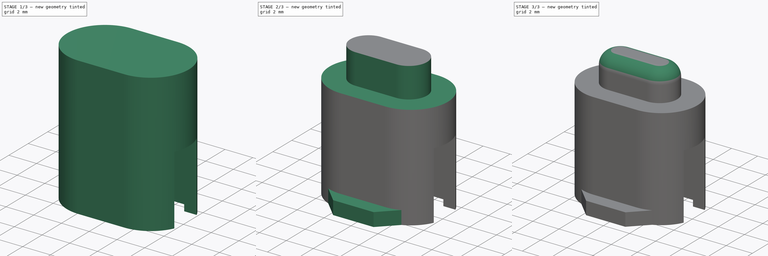
[diagram: build sequence overview — one tinted view per stage of 3, left to right]
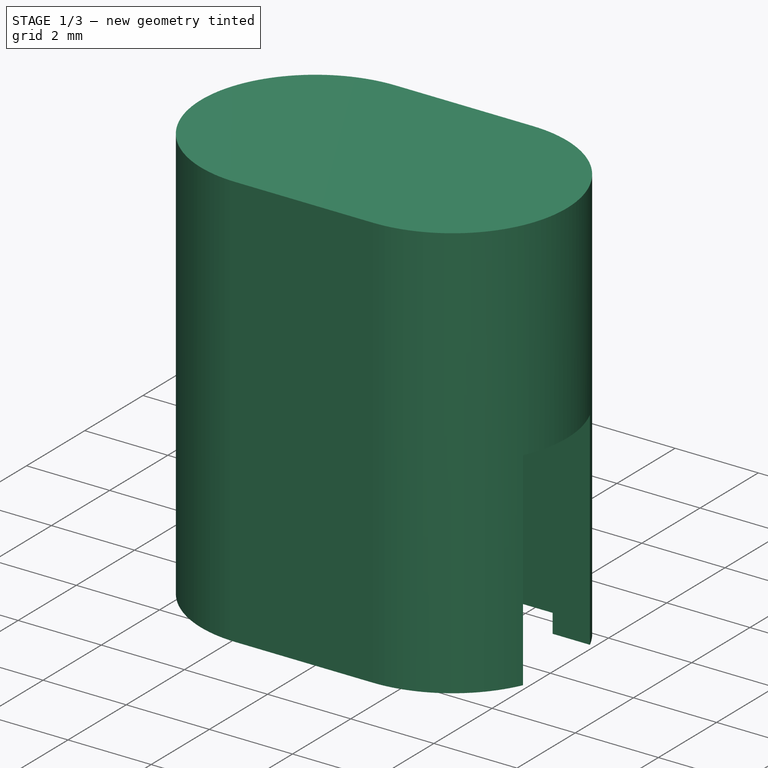
[diagram: stage 1 of 3 — iso view after this stage's code; geometry added in this stage tinted green]
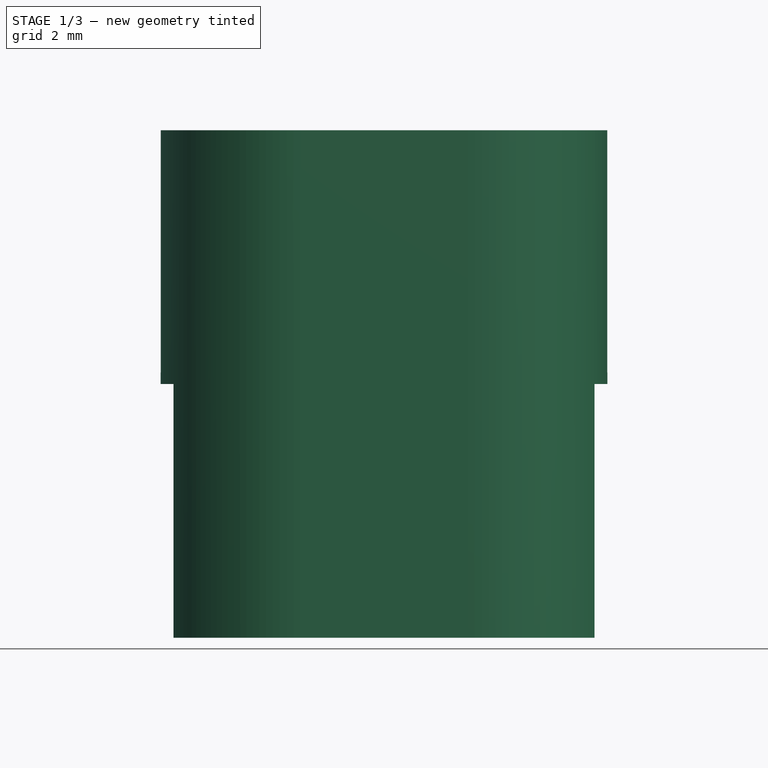
[diagram: stage 1 of 3 — front view after this stage's code; geometry added in this stage tinted green]
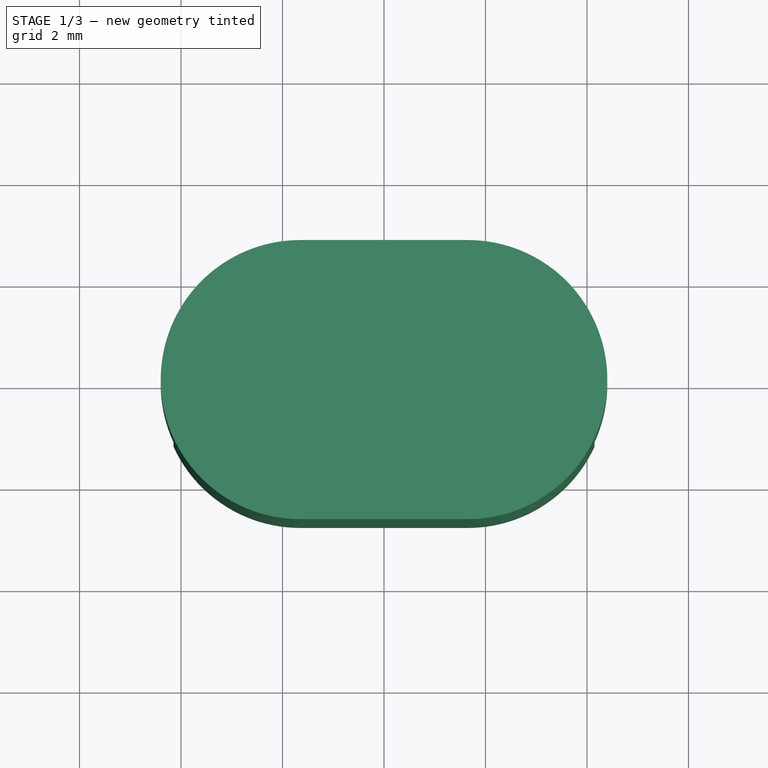
[diagram: stage 1 of 3 — top view after this stage's code; geometry added in this stage tinted green]
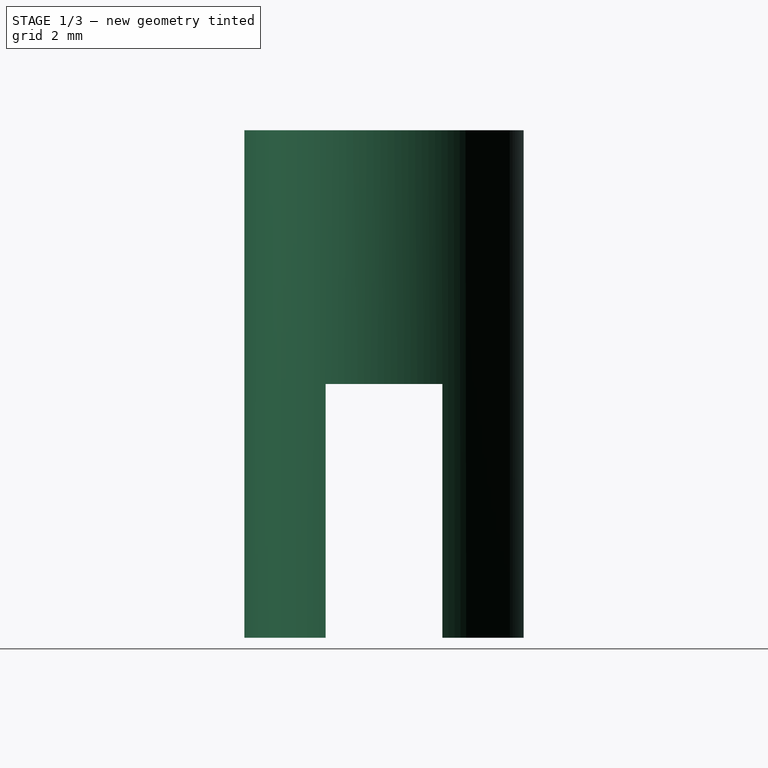
[diagram: stage 1 of 3 — right view after this stage's code; geometry added in this stage tinted green]
FCSTD DOCUMENT  (FreeCAD 1.0R39109 (Git))
Label: PLASTIC-VSN1-BUTTON - version1
License: All rights reserved
LicenseURL: https://en.wikipedia.org/wiki/All_rights_reserved
objects: Sketcher::SketchObject×5, PartDesign::Pad×3, PartDesign::Pocket×2, PartDesign::Plane×1, PartDesign::Mirrored×1, PartDesign::Fillet×1, PartDesign::Body×1
note: 32 computed .brp shape members not serialized (recipe doc carries the construction recipe); baked Part::Feature solids carry a one-line shape summary decoded from their .brp

FEATURE [Sketcher::SketchObject] Sketch
  ArcFitTolerance = 0
  AttachmentSupport = -> [XY_Plane]
  FullyConstrained = true
  MakeInternals = false
  MapMode = 5
  sketch-geometry (15):
    g0: LineSegment [constr] StartX=-3 StartY=-1.65 StartZ=0 EndX=-3 EndY=1.65 EndZ=0
    g1: LineSegment [constr] StartX=-3 StartY=1.65 StartZ=0 EndX=3 EndY=1.65 EndZ=0
    g2: LineSegment [constr] StartX=3 StartY=1.65 StartZ=0 EndX=3 EndY=-1.65 EndZ=0
    g3: LineSegment [constr] StartX=3 StartY=-1.65 StartZ=0 EndX=-3 EndY=-1.65 EndZ=0
    g4: GeomPoint [constr] X=0 Y=0 Z=0
    g5: GeomPoint [constr] X=0 Y=0 Z=0
    g6: LineSegment [constr] StartX=-3.25 StartY=-1.95 StartZ=0 EndX=-3.25 EndY=1.95 EndZ=0
    g7: LineSegment [constr] StartX=-3.25 StartY=1.95 StartZ=0 EndX=3.25 EndY=1.95 EndZ=0
    g8: LineSegment [constr] StartX=3.25 StartY=1.95 StartZ=0 EndX=3.25 EndY=-1.95 EndZ=0
    g9: LineSegment [constr] StartX=3.25 StartY=-1.95 StartZ=0 EndX=-3.25 EndY=-1.95 EndZ=0
    g10: GeomPoint [constr] X=0 Y=0 Z=0
    g11: ArcOfCircle CenterX=-1.65 CenterY=0 CenterZ=0 NormalX=0 NormalY=0 NormalZ=1 AngleXU=0 Radius=2.75 StartAngle=1.5708 EndAngle=4.71239
    g12: ArcOfCircle CenterX=1.65 CenterY=0 CenterZ=0 NormalX=0 NormalY=0 NormalZ=1 AngleXU=0 Radius=2.75 StartAngle=4.71239 EndAngle=7.85398
    g13: LineSegment StartX=-1.65 StartY=-2.75 StartZ=0 EndX=1.65 EndY=-2.75 EndZ=0
    g14: LineSegment StartX=1.65 StartY=2.75 StartZ=0 EndX=-1.65 EndY=2.75 EndZ=0
  constraints (34):
    c: Coincident(g0,g1)
    c: Coincident(g1,g2)
    c: Coincident(g2,g3)
    c: Coincident(g3,g0)
    c: Horizontal(g1)
    c: Horizontal(g3)
    c: Vertical(g0)
    c: Vertical(g2)
    c: Symmetric(g1,g0,g4)
    c: Coincident(g4,g-1)
    c: DistanceX(g1,g1) = 6
    c: DistanceY(g2,g2) = 3.3
    c: Coincident(g5,g4)
    c: Coincident(g6,g7)
    c: Coincident(g7,g8)
    c: Coincident(g8,g9)
    c: Coincident(g9,g6)
    c: Horizontal(g7)
    c: Horizontal(g9)
    c: Vertical(g6)
    c: Vertical(g8)
    c: Symmetric(g7,g6,g10)
    c: Coincident(g10,g4)
    c: DistanceX(g7,g7) = 6.5
    c: DistanceY(g8,g8) = 3.9
    c: Tangent(g11,g13) = -1.5708
    c: Tangent(g13,g12) = -1.5708
    c: Tangent(g12,g14) = -1.5708
    c: Tangent(g14,g11) = -1.5708
    c: Equal(g11,g12)
    c: PointOnObject(g11,g-1)
    c: Diameter(g12) = 5.5
    c: Symmetric(g12,g11,g4)
    c: DistanceX(g11,g12) = 3.3
FEATURE [PartDesign::Pad] Pad
  Direction = (0,0,1)
  Length = 10
  Length2 = 10
  Profile = -> Sketch
  ReferenceAxis = -> Sketch [N_Axis]
  Suppressed = false
  Type = 0
FEATURE [Sketcher::SketchObject] Sketch001
  ArcFitTolerance = 0
  AttachmentSupport = -> [XY_Plane]
  FullyConstrained = true
  MakeInternals = false
  MapMode = 5
  sketch-geometry (13):
    g0: LineSegment StartX=-3.25 StartY=1.95 StartZ=0 EndX=-3.25 EndY=1.15 EndZ=0
    g1: LineSegment StartX=-3.25 StartY=-1.95 StartZ=0 EndX=3.25 EndY=-1.95 EndZ=0
    g2: LineSegment StartX=3.25 StartY=-1.95 StartZ=0 EndX=3.25 EndY=-1.15 EndZ=0
    g3: LineSegment StartX=3.25 StartY=1.95 StartZ=0 EndX=-3.25 EndY=1.95 EndZ=0
    g4: GeomPoint [constr] X=0 Y=0 Z=0
    g5: LineSegment StartX=-3.25 StartY=1.15 StartZ=0 EndX=-5.25 EndY=1.15 EndZ=0
    g6: LineSegment StartX=-5.25 StartY=1.15 StartZ=0 EndX=-5.25 EndY=-1.15 EndZ=0
    g7: LineSegment StartX=-5.25 StartY=-1.15 StartZ=0 EndX=-3.25 EndY=-1.15 EndZ=0
    g8: LineSegment StartX=3.25 StartY=1.15 StartZ=0 EndX=5.25 EndY=1.15 EndZ=0
    g9: LineSegment StartX=5.25 StartY=1.15 StartZ=0 EndX=5.25 EndY=-1.15 EndZ=0
    g10: LineSegment StartX=5.25 StartY=-1.15 StartZ=0 EndX=3.25 EndY=-1.15 EndZ=0
    g11: LineSegment StartX=3.25 StartY=1.15 StartZ=0 EndX=3.25 EndY=1.95 EndZ=0
    g12: LineSegment StartX=-3.25 StartY=-1.15 StartZ=0 EndX=-3.25 EndY=-1.95 EndZ=0
  constraints (34):
    c: Coincident(g12,g1)
    c: Coincident(g1,g2)
    c: Coincident(g11,g3)
    c: Coincident(g3,g0)
    c: Horizontal(g1)
    c: Horizontal(g3)
    c: Vertical(g0)
    c: Vertical(g2)
    c: Symmetric(g1,g0,g4)
    c: Coincident(g4,g-1)
    c: DistanceX(g1,g1) = 6.5
    c: DistanceY(g12,g0) = 3.9
    c: Coincident(g5,g6)
    c: Coincident(g6,g7)
    c: Horizontal(g5)
    c: Horizontal(g7)
    c: Vertical(g6)
    c: Coincident(g8,g9)
    c: Coincident(g9,g10)
    c: Horizontal(g8)
    c: Horizontal(g10)
    c: Vertical(g9)
    c: Symmetric(g5,g7,g-1)
    c: Symmetric(g8,g10,g-1)
    c: Equal(g6,g9)
    c: Coincident(g11,g8)
    c: Coincident(g0,g5)
    c: Vertical(g12)
    c: Coincident(g7,g12)
    c: Vertical(g11)
    c: Coincident(g10,g2)
    c: DistanceY(g6,g6) = 2.3
    c: DistanceX(g5,g5) = 2
    c: Equal(g8,g5)
FEATURE [PartDesign::Pocket] Pocket
  BaseFeature = -> Pad
  Direction = (0,0,-1)
  Length = 5
  Length2 = 5
  Profile = -> Sketch001
  ReferenceAxis = -> Sketch001 [N_Axis]
  Reversed = true
  Suppressed = false
  Type = 0
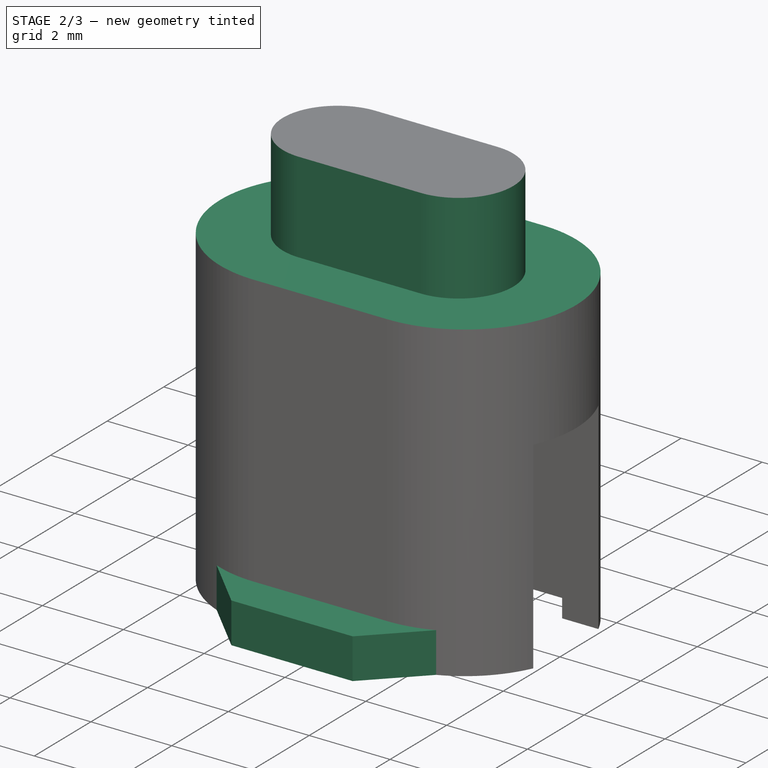
[diagram: stage 2 of 3 — iso view after this stage's code; geometry added in this stage tinted green]
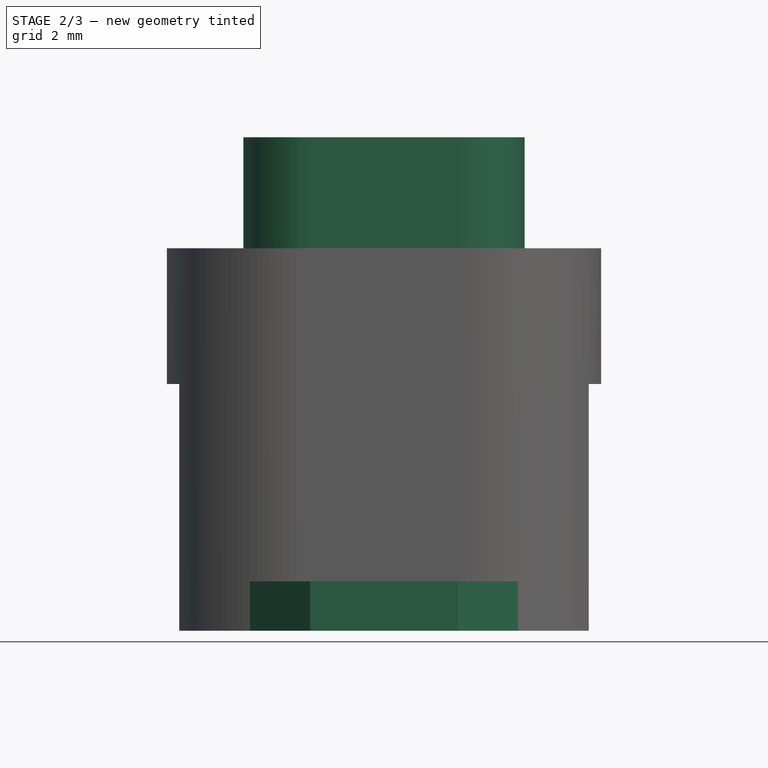
[diagram: stage 2 of 3 — front view after this stage's code; geometry added in this stage tinted green]
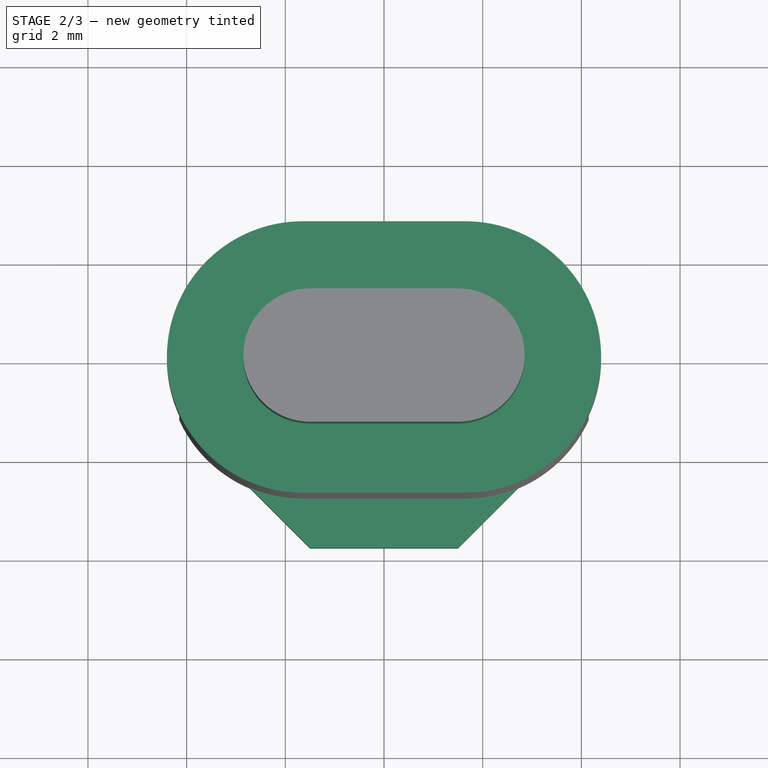
[diagram: stage 2 of 3 — top view after this stage's code; geometry added in this stage tinted green]
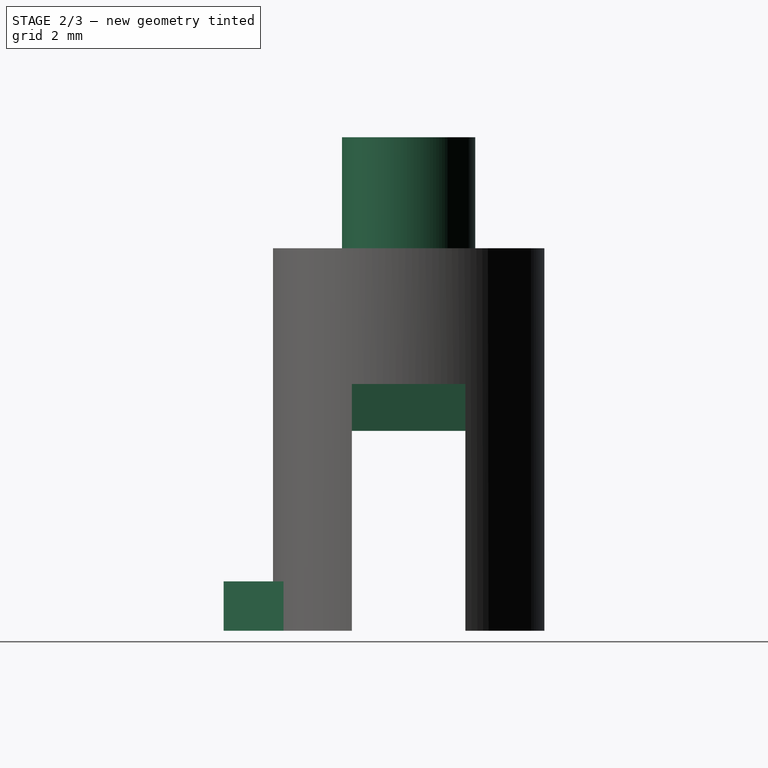
[diagram: stage 2 of 3 — right view after this stage's code; geometry added in this stage tinted green]
FEATURE [Sketcher::SketchObject] Sketch002
  ArcFitTolerance = 0
  AttachmentSupport = -> [XZ_Plane]
  FullyConstrained = true
  MakeInternals = false
  MapMode = 5
  Placement = pos=(0,0,0) rot=(1,0,0;1.5708rad)
  sketch-geometry (11):
    g0: LineSegment StartX=-1 StartY=5 StartZ=0 EndX=-0.5 EndY=5 EndZ=0
    g1: LineSegment StartX=-0.5 StartY=5 StartZ=0 EndX=-0.5 EndY=4.05 EndZ=0
    g2: LineSegment StartX=-0.5 StartY=4.05 StartZ=0 EndX=-1 EndY=4.05 EndZ=0
    g3: LineSegment StartX=-1 StartY=4.05 StartZ=0 EndX=-1 EndY=5 EndZ=0
    g4: LineSegment StartX=0.5 StartY=5 StartZ=0 EndX=1 EndY=5 EndZ=0
    g5: LineSegment StartX=1 StartY=5 StartZ=0 EndX=1 EndY=4.05 EndZ=0
    g6: LineSegment StartX=1 StartY=4.05 StartZ=0 EndX=0.5 EndY=4.05 EndZ=0
    g7: LineSegment StartX=0.5 StartY=4.05 StartZ=0 EndX=0.5 EndY=5 EndZ=0
    g8: GeomPoint [constr] X=-0.75 Y=5 Z=0
    g9: GeomPoint [constr] X=0.75 Y=5 Z=0
    g10: LineSegment [constr] StartX=-0.5 StartY=5 StartZ=0 EndX=0.5 EndY=5 EndZ=0
  constraints (27):
    c: Coincident(g0,g1)
    c: Coincident(g1,g2)
    c: Coincident(g2,g3)
    c: Coincident(g3,g0)
    c: Horizontal(g0)
    c: Horizontal(g2)
    c: Vertical(g1)
    c: Vertical(g3)
    c: Coincident(g4,g5)
    c: Coincident(g5,g6)
    c: Coincident(g6,g7)
    c: Coincident(g7,g4)
    c: Horizontal(g4)
    c: Horizontal(g6)
    c: Vertical(g5)
    c: Vertical(g7)
    c: Coincident(g10,g0)
    c: Coincident(g10,g4)
    c: Symmetric(g4,g0,g-2)
    c: Equal(g4,g0)
    c: Equal(g7,g1)
    c: DistanceX(g4,g4) = 0.5
    c: DistanceX(g8,g9) = 1.5
    c: DistanceY(g-1,g4) = 5
    c: Symmetric(g4,g4,g9)
    c: Symmetric(g0,g0,g8)
    c: DistanceY(g-1,g6) = 4.05
FEATURE [PartDesign::Plane] DatumPlane001
  AttachmentOffset = pos=(0,0,7.75) rot=(0,0,1;0rad)
  AttachmentSupport = -> [XY_Plane]
  Length = 60
  MapMode = 5
  Placement = pos=(0,0,7.75) rot=(0,0,1;0rad)
  ResizeMode = 0
  Width = 60
FEATURE [Sketcher::SketchObject] Sketch005
  ArcFitTolerance = 0
  AttachmentSupport = -> [DatumPlane001]
  FullyConstrained = true
  MakeInternals = false
  MapMode = 5
  Placement = pos=(0,0,7.75) rot=(0,0,1;0rad)
  sketch-geometry (31):
    g0: ArcOfCircle CenterX=-1.5 CenterY=0 CenterZ=0 NormalX=0 NormalY=0 NormalZ=1 AngleXU=0 Radius=1.35 StartAngle=1.5708 EndAngle=4.71239
    g1: ArcOfCircle CenterX=1.5 CenterY=0 CenterZ=0 NormalX=0 NormalY=0 NormalZ=1 AngleXU=0 Radius=1.35 StartAngle=4.71239 EndAngle=7.85398
    g2: LineSegment StartX=-1.5 StartY=-1.35 StartZ=0 EndX=1.5 EndY=-1.35 EndZ=0
    g3: LineSegment StartX=1.5 StartY=1.35 StartZ=0 EndX=-1.5 EndY=1.35 EndZ=0
    g4: ArcOfCircle [constr] CenterX=-1.5 CenterY=0 CenterZ=0 NormalX=0 NormalY=0 NormalZ=1 AngleXU=0 Radius=1.5 StartAngle=1.5708 EndAngle=4.71239
    g5: ArcOfCircle [constr] CenterX=1.5 CenterY=0 CenterZ=0 NormalX=0 NormalY=0 NormalZ=1 AngleXU=0 Radius=1.5 StartAngle=4.71239 EndAngle=7.85398
    g6: LineSegment [constr] StartX=-1.5 StartY=-1.5 StartZ=0 EndX=1.5 EndY=-1.5 EndZ=0
    g7: LineSegment [constr] StartX=1.5 StartY=1.5 StartZ=0 EndX=-1.5 EndY=1.5 EndZ=0
    g8: LineSegment [constr] StartX=2.85 StartY=0 StartZ=0 EndX=3 EndY=0 EndZ=0
    g9: LineSegment StartX=-5 StartY=-5 StartZ=0 EndX=-5 EndY=5 EndZ=0
    g10: LineSegment StartX=-5 StartY=5 StartZ=0 EndX=5 EndY=5 EndZ=0
    g11: LineSegment StartX=5 StartY=5 StartZ=0 EndX=5 EndY=-5 EndZ=0
    g12: LineSegment StartX=5 StartY=-5 StartZ=0 EndX=-5 EndY=-5 EndZ=0
    g13: GeomPoint [constr] X=0 Y=0 Z=0
    g14: LineSegment [constr] StartX=-1.5 StartY=-1.925 StartZ=0 EndX=1.5 EndY=-1.925 EndZ=0
    g15: LineSegment [constr] StartX=2.5 StartY=-0.925 StartZ=0 EndX=2.5 EndY=0.925 EndZ=0
    g16: LineSegment [constr] StartX=1.5 StartY=1.925 StartZ=0 EndX=-1.5 EndY=1.925 EndZ=0
    g17: LineSegment [constr] StartX=-2.5 StartY=0.925 StartZ=0 EndX=-2.5 EndY=-0.925 EndZ=0
    g18: GeomPoint [constr] X=0 Y=0 Z=0
    g19: ArcOfCircle [constr] CenterX=-1.5 CenterY=0.925 CenterZ=0 NormalX=0 NormalY=0 NormalZ=1 AngleXU=0 Radius=1 StartAngle=1.5708 EndAngle=3.14159
    g20: GeomPoint [constr] X=-2.5 Y=1.925 Z=0
    g21: ArcOfCircle [constr] CenterX=-1.5 CenterY=-0.925 CenterZ=0 NormalX=0 NormalY=0 NormalZ=1 AngleXU=0 Radius=1 StartAngle=3.14159 EndAngle=4.71239
    g22: GeomPoint [constr] X=-2.5 Y=-1.925 Z=0
    g23: ArcOfCircle [constr] CenterX=1.5 CenterY=-0.925 CenterZ=0 NormalX=0 NormalY=0 NormalZ=1 AngleXU=0 Radius=1 StartAngle=4.71239 EndAngle=6.28319
    g24: GeomPoint [constr] X=2.5 Y=-1.925 Z=0
    g25: ArcOfCircle [constr] CenterX=1.5 CenterY=0.925 CenterZ=0 NormalX=0 NormalY=0 NormalZ=1 AngleXU=0 Radius=1 StartAngle=0 EndAngle=1.5708
    g26: GeomPoint [constr] X=2.5 Y=1.925 Z=0
    g27: ArcOfCircle [constr] CenterX=-1 CenterY=0 CenterZ=0 NormalX=0 NormalY=0 NormalZ=1 AngleXU=0 Radius=0.75 StartAngle=1.5708 EndAngle=4.71239
    g28: ArcOfCircle [constr] CenterX=1 CenterY=0 CenterZ=0 NormalX=0 NormalY=0 NormalZ=1 AngleXU=0 Radius=0.75 StartAngle=4.71239 EndAngle=7.85398
    g29: LineSegment [constr] StartX=-1 StartY=0.75 StartZ=0 EndX=1 EndY=0.75 EndZ=0
    g30: LineSegment [constr] StartX=-1 StartY=-0.75 StartZ=0 EndX=1 EndY=-0.75 EndZ=0
  constraints (72):
    c: Tangent(g0,g2) = -1.5708
    c: Tangent(g2,g1) = -1.5708
    c: Tangent(g1,g3) = -1.5708
    c: Tangent(g3,g0) = -1.5708
    c: Equal(g0,g1)
    c: PointOnObject(g0,g-1)
    c: Symmetric(g1,g0,g-1)
    c: Diameter(g1) = 2.7
    c: DistanceX(g3,g3) = 3
    c: Tangent(g4,g6) = -1.5708
    c: Tangent(g6,g5) = -1.5708
    c: Tangent(g5,g7) = -1.5708
    c: Tangent(g7,g4) = -1.5708
    c: Equal(g4,g5)
    c: PointOnObject(g4,g-1)
    c: Symmetric(g5,g4,g-2)
    c: DistanceX(g4,g5) = 3
    c: Diameter(g5) = 3
    c: PointOnObject(g8,g1)
    c: PointOnObject(g8,g5)
    c: Horizontal(g8)
    c: PointOnObject(g8,g-1)
    c: DistanceX(g8,g8) = 0.15
    c: Coincident(g9,g10)
    c: Coincident(g10,g11)
    c: Coincident(g11,g12)
    c: Coincident(g12,g9)
    c: Horizontal(g10)
    c: Horizontal(g12)
    c: Vertical(g9)
    c: Vertical(g11)
    c: Symmetric(g10,g9,g13)
    c: Coincident(g13,g-1)
    c: DistanceX(g10,g10) = 10
    c: DistanceY(g11,g11) = 10
    c: Horizontal(g14)
    c: Horizontal(g16)
    c: Vertical(g15)
    c: Vertical(g17)
    c: Symmetric(g26,g22,g18)
    c: Coincident(g18,g13)
    c: PointOnObject(g20,g16)
    c: PointOnObject(g20,g17)
    c: Tangent(g16,g19) = -1.5708
    c: Tangent(g17,g19) = -1.5708
    c: PointOnObject(g22,g17)
    c: PointOnObject(g22,g14)
    c: Tangent(g17,g21) = -1.5708
    c: Tangent(g14,g21) = -1.5708
    c: PointOnObject(g24,g15)
    c: PointOnObject(g24,g14)
    c: Tangent(g15,g23) = -1.5708
    c: Tangent(g14,g23) = -1.5708
    c: PointOnObject(g26,g15)
    c: PointOnObject(g26,g16)
    c: Tangent(g15,g25) = -1.5708
    c: Tangent(g16,g25) = -1.5708
    c: Equal(g19,g21)
    c: Equal(g21,g23)
    c: Equal(g23,g25)
    c: Diameter(g21) = 2
    c: DistanceX(g17,g15) = 5
    c: DistanceY(g14,g16) = 3.85
    c: Tangent(g27,g29) = 1.5708
    c: Tangent(g27,g30) = -1.5708
    c: Tangent(g28,g29) = 1.5708
    c: Tangent(g28,g30) = -1.5708
    c: Equal(g27,g28)
    c: Horizontal(g30)
    c: Symmetric(g28,g27,g13)
    c: DistanceX(g27,g28) = 2
    c: Diameter(g27) = 1.5
FEATURE [PartDesign::Pad] Pad001
  BaseFeature = -> Pocket
  Direction = (0,-1,2e-16)
  Length = 4
  Length2 = 10
  Midplane = true
  Profile = -> Sketch002
  ReferenceAxis = -> Sketch002 [N_Axis]
  Suppressed = false
  Type = 0
FEATURE [PartDesign::Pocket] Pocket001
  BaseFeature = -> Pad001
  Direction = (0,0,-1)
  Length = 5
  Length2 = 5
  Profile = -> Sketch005
  ReferenceAxis = -> Sketch005 [N_Axis]
  Refine = true
  Reversed = true
  Suppressed = false
  Type = 1
FEATURE [Sketcher::SketchObject] Sketch006
  ArcFitTolerance = 0
  AttachmentSupport = -> [XY_Plane]
  FullyConstrained = true
  MakeInternals = false
  MapMode = 5
  sketch-geometry (8):
    g0: ArcOfCircle [constr] CenterX=-1.65 CenterY=0 CenterZ=0 NormalX=0 NormalY=0 NormalZ=1 AngleXU=0 Radius=2.75 StartAngle=1.5708 EndAngle=4.71239
    g1: ArcOfCircle [constr] CenterX=1.65 CenterY=0 CenterZ=0 NormalX=0 NormalY=0 NormalZ=1 AngleXU=0 Radius=2.75 StartAngle=4.71239 EndAngle=7.85398
    g2: LineSegment [constr] StartX=-1.65 StartY=-2.75 StartZ=0 EndX=1.65 EndY=-2.75 EndZ=0
    g3: LineSegment [constr] StartX=1.65 StartY=2.75 StartZ=0 EndX=-1.65 EndY=2.75 EndZ=0
    g4: LineSegment StartX=-2.7143 StartY=-2.5357 StartZ=0 EndX=-1.5 EndY=-3.75 EndZ=0
    g5: LineSegment StartX=-1.5 StartY=-3.75 StartZ=0 EndX=1.5 EndY=-3.75 EndZ=0
    g6: LineSegment StartX=1.5 StartY=-3.75 StartZ=0 EndX=2.7143 EndY=-2.5357 EndZ=0
    g7: LineSegment StartX=-2.7143 StartY=-2.5357 StartZ=0 EndX=2.7143 EndY=-2.5357 EndZ=0
  constraints (20):
    c: Tangent(g0,g2) = -1.5708
    c: Tangent(g2,g1) = -1.5708
    c: Tangent(g1,g3) = -1.5708
    c: Tangent(g3,g0) = -1.5708
    c: Equal(g0,g1)
    c: PointOnObject(g0,g-1)
    c: Symmetric(g0,g1,g-1)
    c: Diameter(g1) = 5.5
    c: DistanceX(g0,g1) = 3.3
    c: PointOnObject(g4,g0)
    c: Coincident(g5,g4)
    c: Coincident(g6,g5)
    c: PointOnObject(g6,g1)
    c: Coincident(g7,g4)
    c: Coincident(g7,g6)
    c: Horizontal(g7)
    c: Symmetric(g5,g4,g-2)
    c: DistanceY(g5,g1) = 1
    c: Angle(g6,g5) = 2.35619
    c: DistanceX(g5,g5) = 3
FEATURE [PartDesign::Pad] Pad002
  BaseFeature = -> Pocket001
  Direction = (0,0,1)
  Length = 1
  Length2 = 10
  Profile = -> Sketch006
  ReferenceAxis = -> Sketch006 [N_Axis]
  Refine = true
  Suppressed = false
  Type = 0
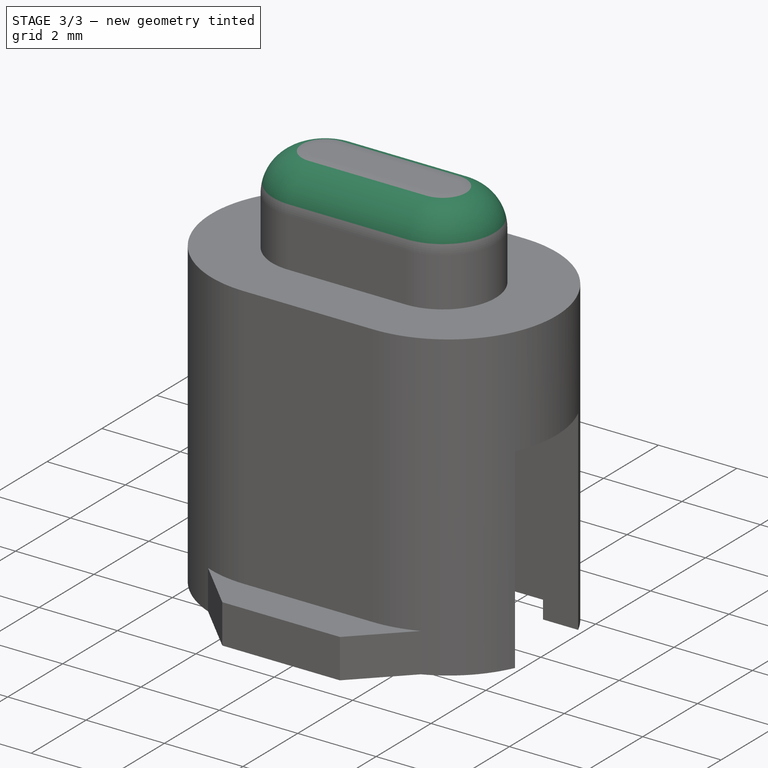
[diagram: stage 3 of 3 — iso view after this stage's code; geometry added in this stage tinted green]
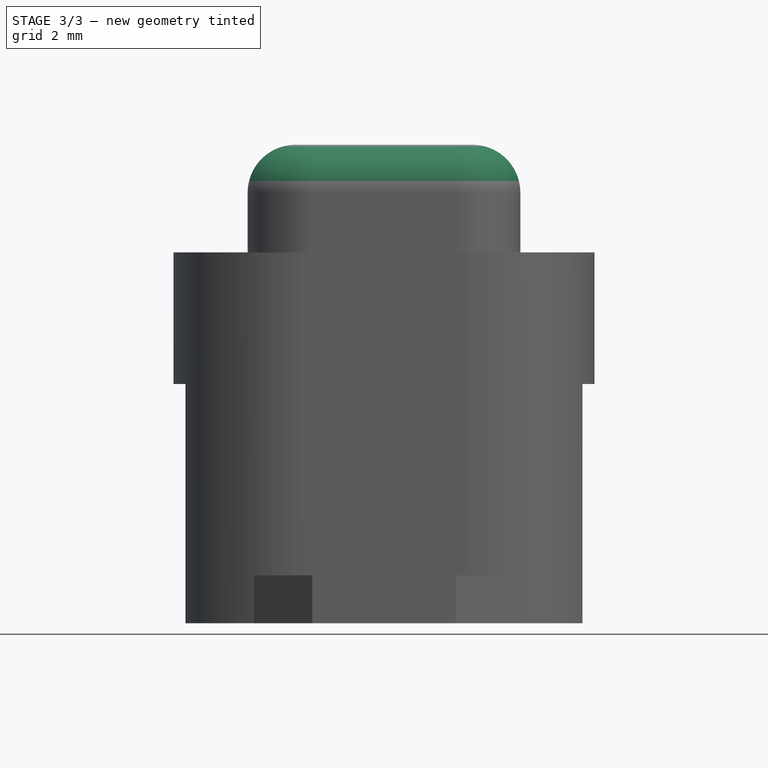
[diagram: stage 3 of 3 — front view after this stage's code; geometry added in this stage tinted green]
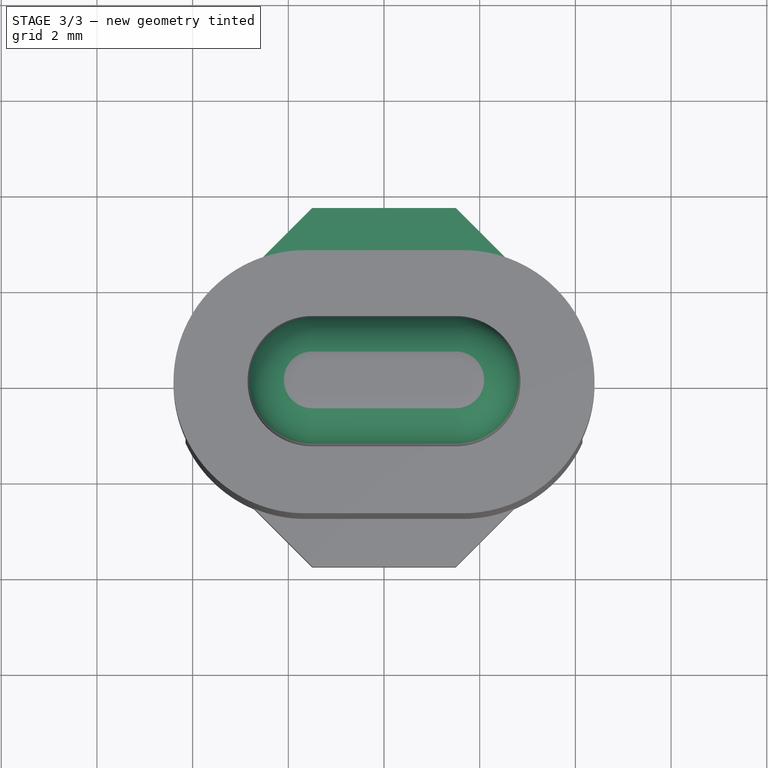
[diagram: stage 3 of 3 — top view after this stage's code; geometry added in this stage tinted green]
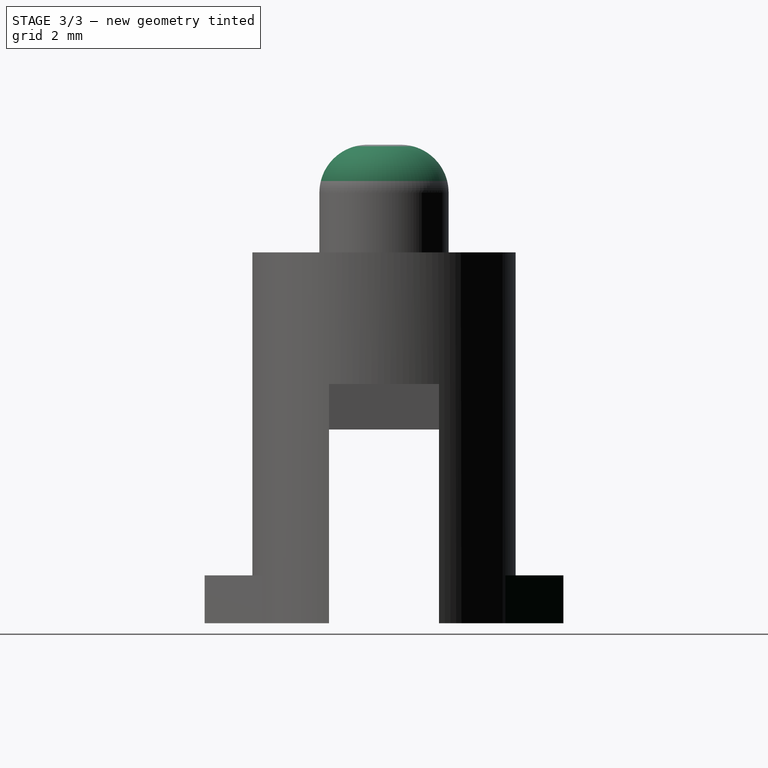
[diagram: stage 3 of 3 — right view after this stage's code; geometry added in this stage tinted green]
FEATURE [PartDesign::Mirrored] Mirrored
  BaseFeature = -> Pad002
  MirrorPlane = -> XZ_Plane
  Originals = -> [Pad002]
  Refine = true
  Suppressed = false
  TransformMode = 0
FEATURE [PartDesign::Fillet] Fillet
  Base = -> Mirrored [Edge107,Edge108,Edge104,Edge102]
  BaseFeature = -> Mirrored
  Radius = 1
  Refine = true
  SupportTransform = false
  Suppressed = false
  UseAllEdges = false
FEATURE [PartDesign::Body] Body  label="PLASTIC-VSN1-BUTTON"
  AllowCompound = false
  Group = -> [Sketch,Pad,Sketch001,Pocket,Sketch002,Pad001,DatumPlane001,Sketch005,Pocket001,Sketch006,Pad002,Mirrored,Fillet]
  Origin = -> Origin
  Tip = -> Fillet
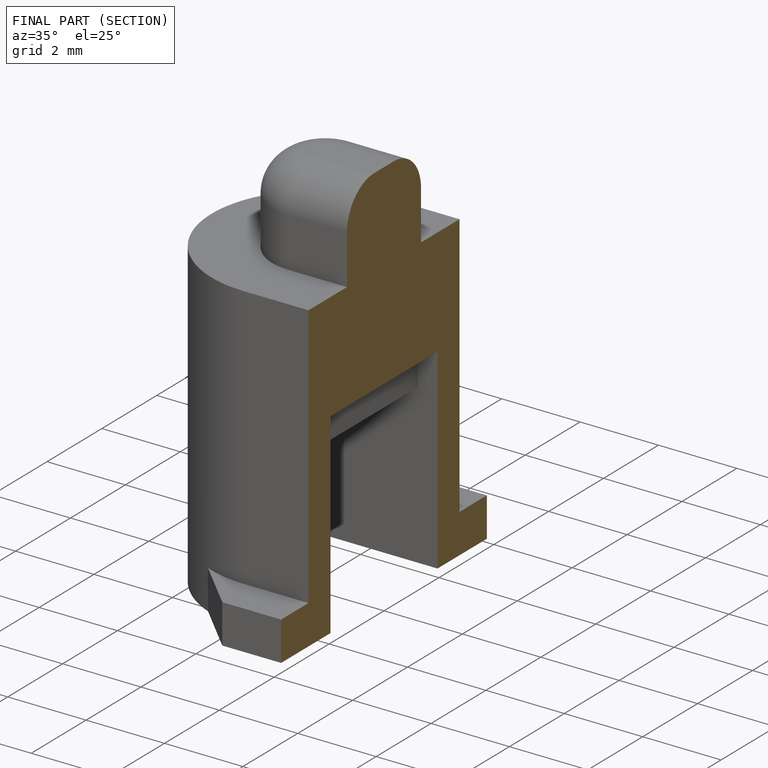
[diagram: finished part — half-section view (interior)]
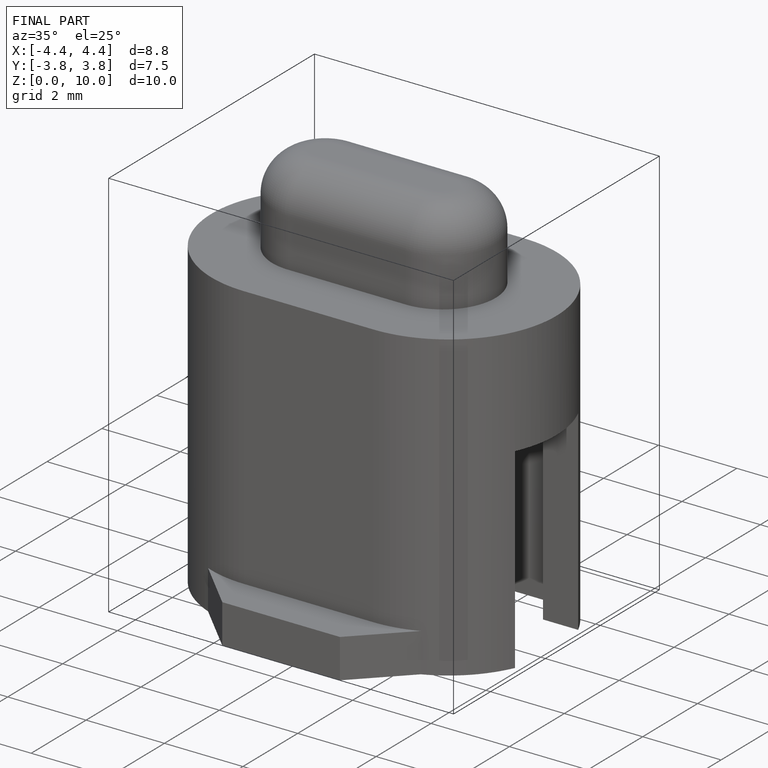
[diagram: finished part — iso view with bounding-box wireframe]
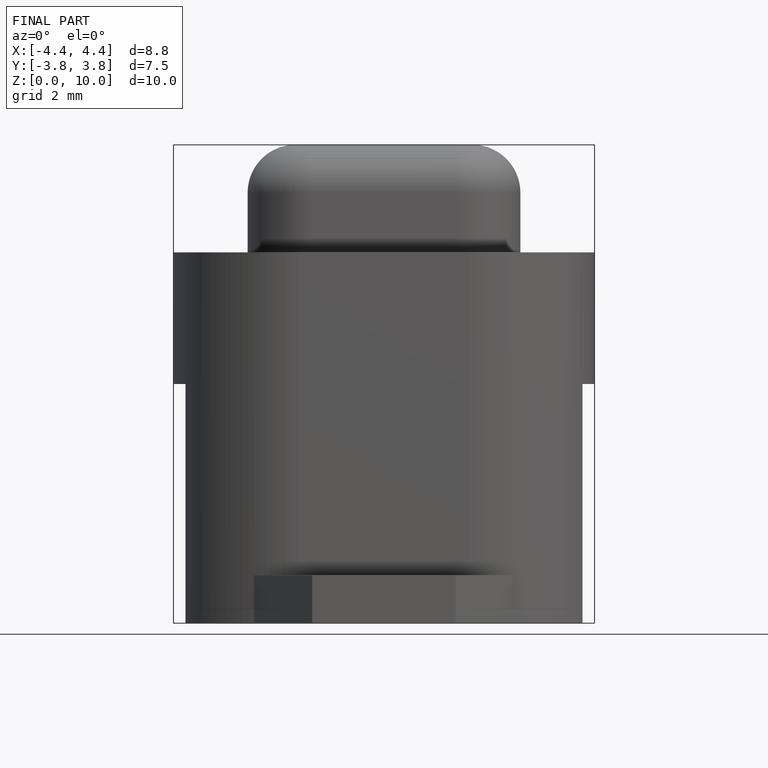
[diagram: finished part — front view with bounding-box wireframe]
